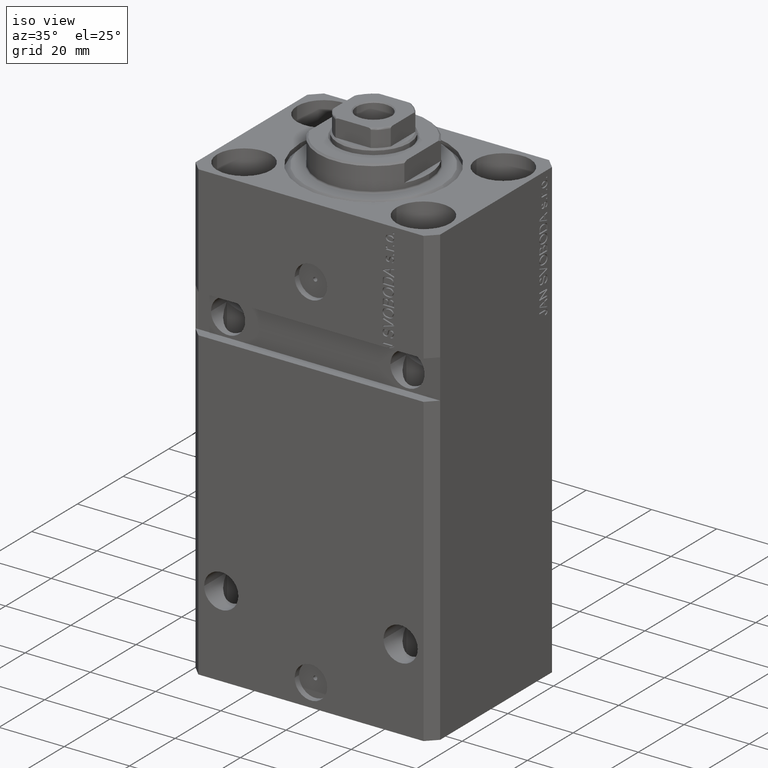
[diagram: clean part render]
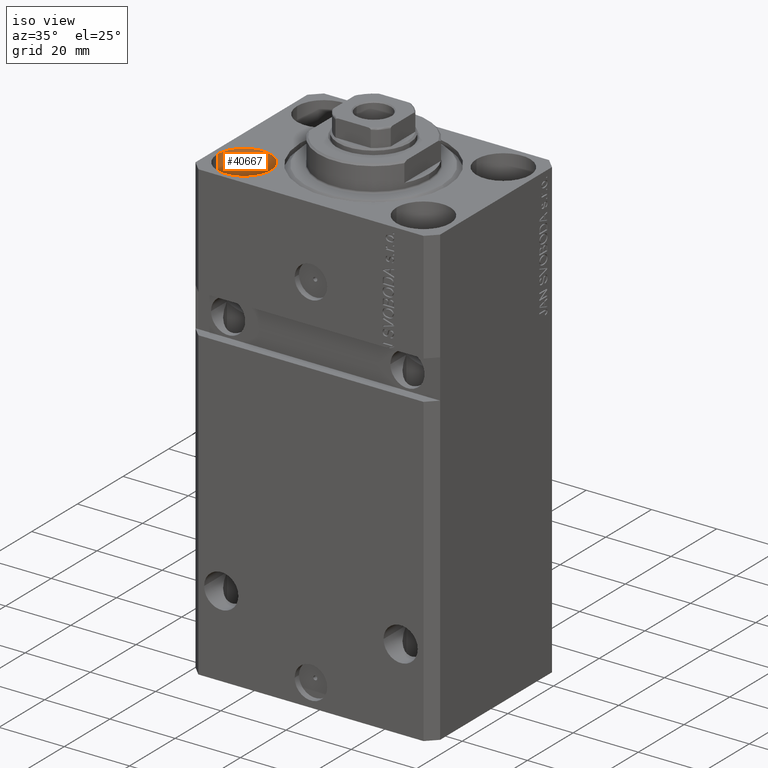
[diagram: same view with one face highlighted and labeled with its STEP entity id]
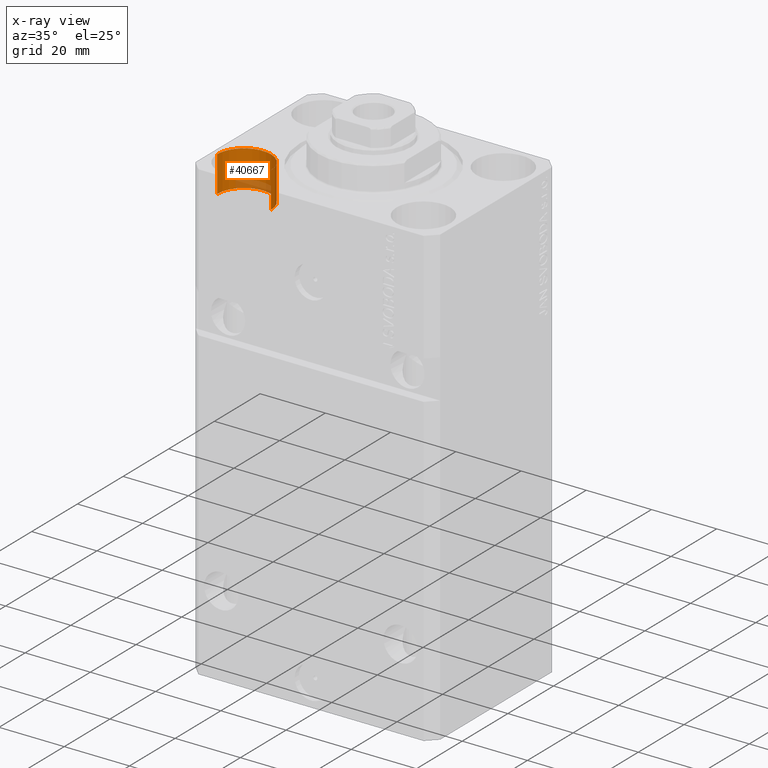
[diagram: x-ray of the same camera — body ghosted, the highlighted face saturated]
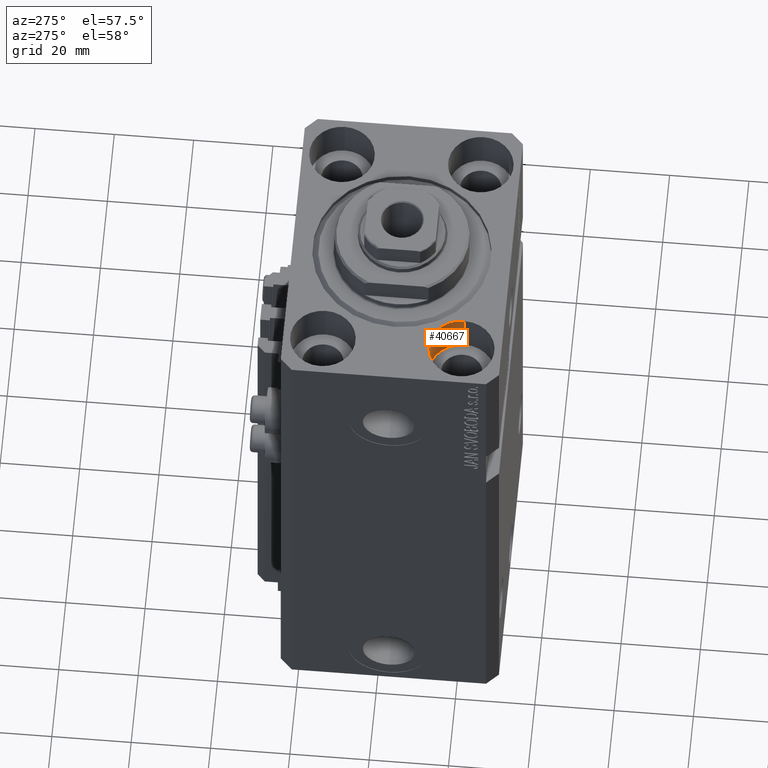
[diagram: same view with one face highlighted and labeled with its STEP entity id]
A machine part, iso view. The second image highlights one B-rep face of the part: STEP entity #40667.
The next image is the same camera in x-ray: the body ghosted, the highlighted face saturated — about 12% of this face is hidden behind the body in this view.
A second angle (auxiliary view) of the same face is appended — the face is thin or edge-on in the first view.
In plain terms, the highlighted cylindrical surface (edge-blend (fillet) strip) has radius 8.25 mm, axis along (0, 0, 1).
Its self-contained STEP definition (entity closure, byte-faithful):
#244 = CIRCLE ( 'NONE', #2526, 8.250000000000000000 ) ;
#2526 = AXIS2_PLACEMENT_3D ( 'NONE', #30445, #45053, #12960 ) ;
#5497 = CARTESIAN_POINT ( 'NONE',  ( -35.75000000000000711, -17.50000000000000000, -11.00000000000000000 ) ) ;
#6897 = EDGE_CURVE ( 'NONE', #45985, #40653, #19201, .T. ) ;
#8320 = DIRECTION ( 'NONE',  ( 1.000000000000000000, 0.000000000000000000, 0.000000000000000000 ) ) ;
#8558 = DIRECTION ( 'NONE',  ( -0.000000000000000000, -0.000000000000000000, 1.000000000000000000 ) ) ;
#10397 = EDGE_CURVE ( 'NONE', #46340, #20008, #244, .T. ) ;
#12384 = FACE_OUTER_BOUND ( 'NONE', #23007, .T. ) ;
#12916 = LINE ( 'NONE', #5497, #21543 ) ;
#12960 = DIRECTION ( 'NONE',  ( 1.000000000000000000, 0.000000000000000000, 0.000000000000000000 ) ) ;
#13293 = DIRECTION ( 'NONE',  ( -0.000000000000000000, -0.000000000000000000, 1.000000000000000000 ) ) ;
#14299 = ORIENTED_EDGE ( 'NONE', *, *, #10397, .T. ) ;
#14433 = ORIENTED_EDGE ( 'NONE', *, *, #23904, .T. ) ;
#15808 = VECTOR ( 'NONE', #13293, 1000.000000000000000 ) ;
#16897 = CARTESIAN_POINT ( 'NONE',  ( -19.25000000000000355, -17.50000000000000000, -11.00000000000000000 ) ) ;
#19201 = CIRCLE ( 'NONE', #45978, 8.250000000000000000 ) ;
#20008 = VERTEX_POINT ( 'NONE', #36301 ) ;
#21543 = VECTOR ( 'NONE', #30873, 1000.000000000000000 ) ;
#22701 = CARTESIAN_POINT ( 'NONE',  ( -35.75000000000000711, -17.50000000000000000, -11.00000000000000000 ) ) ;
#23007 = EDGE_LOOP ( 'NONE', ( #45598, #45083, #14433, #14299 ) ) ;
#23904 = EDGE_CURVE ( 'NONE', #45985, #46340, #35090, .T. ) ;
#25837 = DIRECTION ( 'NONE',  ( 1.000000000000000000, 0.000000000000000000, 0.000000000000000000 ) ) ;
#26757 = CARTESIAN_POINT ( 'NONE',  ( -27.50000000000000355, -17.50000000000000000, -11.00000000000000000 ) ) ;
#28732 = CARTESIAN_POINT ( 'NONE',  ( -19.25000000000000355, -17.50000000000000000, 0.000000000000000000 ) ) ;
#30010 = AXIS2_PLACEMENT_3D ( 'NONE', #26757, #8558, #8320 ) ;
#30445 = CARTESIAN_POINT ( 'NONE',  ( -27.50000000000000355, -17.50000000000000000, 0.000000000000000000 ) ) ;
#30873 = DIRECTION ( 'NONE',  ( -0.000000000000000000, -0.000000000000000000, 1.000000000000000000 ) ) ;
#35090 = LINE ( 'NONE', #16897, #15808 ) ;
#36217 = CARTESIAN_POINT ( 'NONE',  ( -19.25000000000000355, -17.50000000000000000, -11.00000000000000000 ) ) ;
#36301 = CARTESIAN_POINT ( 'NONE',  ( -35.75000000000000711, -17.50000000000000000, 0.000000000000000000 ) ) ;
#36574 = EDGE_CURVE ( 'NONE', #40653, #20008, #12916, .T. ) ;
#37531 = CYLINDRICAL_SURFACE ( 'NONE', #30010, 8.250000000000000000 ) ;
#40219 = DIRECTION ( 'NONE',  ( 0.000000000000000000, 0.000000000000000000, 1.000000000000000000 ) ) ;
#40653 = VERTEX_POINT ( 'NONE', #22701 ) ;
#40667 = ADVANCED_FACE ( 'NONE', ( #12384 ), #37531, .F. ) ;
#44265 = CARTESIAN_POINT ( 'NONE',  ( -27.50000000000000355, -17.50000000000000000, -11.00000000000000000 ) ) ;
#45053 = DIRECTION ( 'NONE',  ( 0.000000000000000000, 0.000000000000000000, 1.000000000000000000 ) ) ;
#45083 = ORIENTED_EDGE ( 'NONE', *, *, #6897, .F. ) ;
#45598 = ORIENTED_EDGE ( 'NONE', *, *, #36574, .F. ) ;
#45978 = AXIS2_PLACEMENT_3D ( 'NONE', #44265, #40219, #25837 ) ;
#45985 = VERTEX_POINT ( 'NONE', #36217 ) ;
#46340 = VERTEX_POINT ( 'NONE', #28732 ) ;